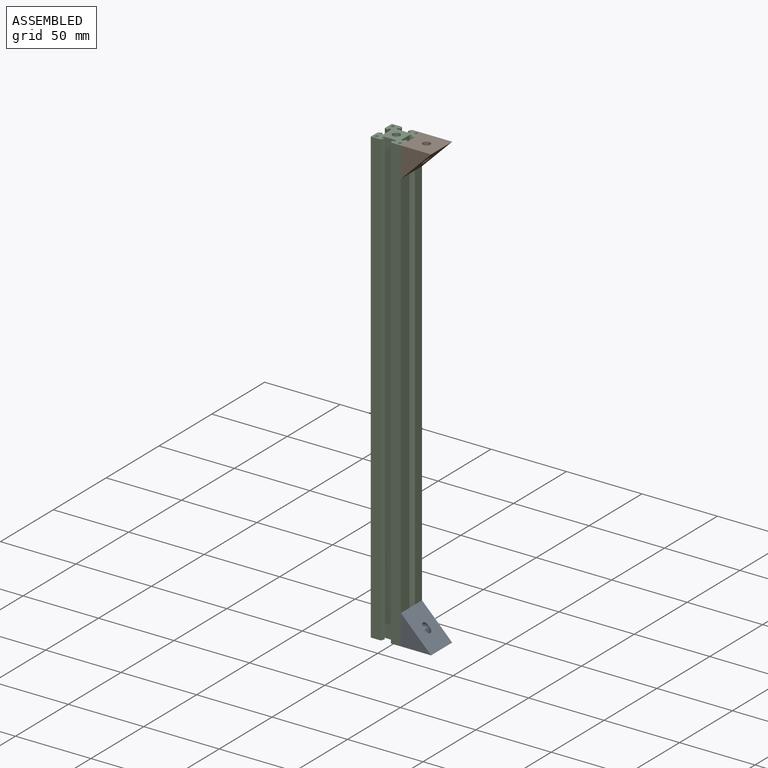
[diagram: assembled view]
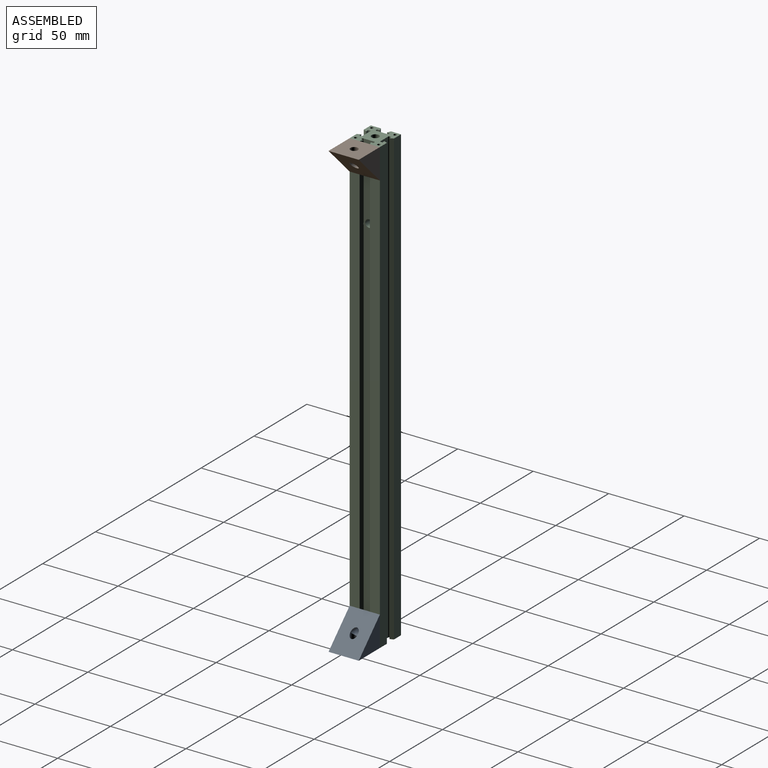
[diagram: assembled view, second angle]
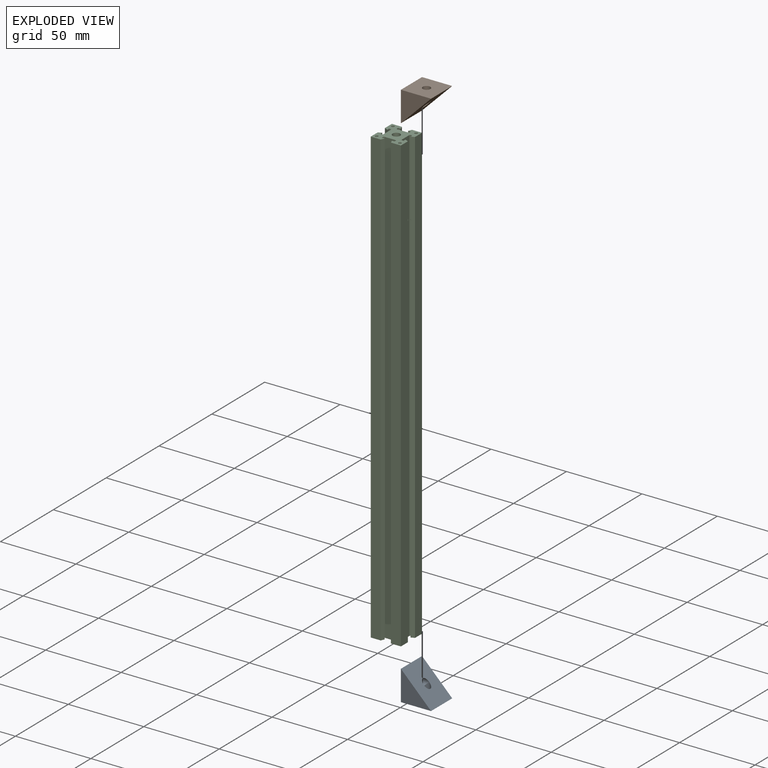
[diagram: exploded view]
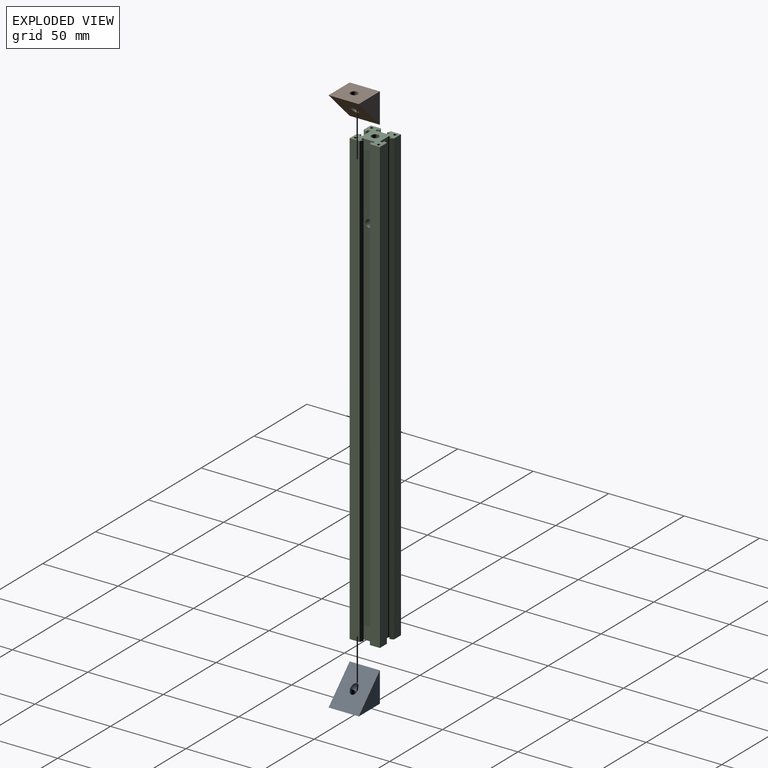
[diagram: exploded view, second angle]
ASSEMBLY  parts=3 mates=2
PART A: 7 faces, bbox 20x20x20 mm
  f0: plane 20x20mm, normal (-1,0,0), area 200mm2, adj f1,f4,f5
  f1: plane 20x20mm, normal (0,-1,0), area 380.4mm2, adj f0,f2,f4,f5,f6
  f2: plane 20x20mm, normal (1,0,0), area 200mm2, adj f1,f4,f5
  f3: cylinder r=2.5mm len=10mm, axis (0,0,-1), area 132.1mm2, adj f4,f5,f6
  f4: plane 20x20mm, normal (0,0,-1), area 380.4mm2, adj f0,f1,f2,f3,f5
  f5: plane 20x20mm, normal (0,0.71,0.71), area 537.9mm2, adj f0,f1,f2,f3,f4,f6
  f6: cylinder r=2.5mm len=10mm, axis (0,-1,0), area 132.1mm2, adj f1,f3,f5
PART B: same geometry as A
PART C: 56 faces, bbox 20x20x300 mm
  f0: cylinder r=2.5mm len=50mm, axis (0,0,-1), area 760.4mm2, adj f50,f52,f53
  f1: plane 300x1.74mm, normal (-1,0,0), area 522.6mm2, adj f2,f48,f50,f51,f54
  f2: plane 300x1.33mm, normal (0,1,0), area 399.7mm2, adj f1,f3,f50,f51
  f3: plane 300x0.44mm, normal (0.81,0.59,0), area 162.1mm2, adj f2,f4,f50,f51
  f4: plane 300x7.42mm, normal (1,0,0), area 2204.9mm2, adj f3,f5,f50,f51,f52
  f5: plane 300x0.44mm, normal (0.81,-0.59,0), area 162.1mm2, adj f4,f6,f50,f51
  f6: plane 300x1.33mm, normal (0,-1,0), area 399.7mm2, adj f5,f7,f50,f51
  f7: plane 300x1.74mm, normal (-1,0,0), area 522.6mm2, adj f6,f8,f50,f51,f55
  f8: plane 300x2.31mm, normal (0.39,-0.92,0), area 750.9mm2, adj f7,f9,f50,f51,f55
  f9: plane 300x6.63mm, normal (1,0,0), area 1989.2mm2, adj f8,f10,f50,f51
  f10: plane 300x6.63mm, normal (0,1,0), area 1989.2mm2, adj f9,f11,f50,f51
  f11: plane 300x2.31mm, normal (-0.92,0.39,0), area 751.1mm2, adj f10,f12,f50,f51
  f12: plane 300x1.81mm, normal (0,-1,0), area 543.3mm2, adj f11,f13,f50,f51
  f13: plane 300x1.43mm, normal (-1,0,0), area 428.1mm2, adj f12,f14,f50,f51
  f14: plane 300x0.44mm, normal (-0.59,0.81,0), area 162.1mm2, adj f13,f15,f50,f51
  f15: plane 300x7.55mm, normal (0,1,0), area 2265.7mm2, adj f14,f16,f50,f51
  f16: plane 300x0.44mm, normal (0.59,0.81,0), area 162.1mm2, adj f15,f17,f50,f51
  f17: plane 300x1.43mm, normal (1,0,0), area 428.1mm2, adj f16,f18,f50,f51
  f18: plane 300x1.81mm, normal (0,-1,0), area 543.3mm2, adj f17,f19,f50,f51
  f19: plane 300x2.31mm, normal (0.92,0.39,0), area 751.1mm2, adj f18,f20,f50,f51
  f20: plane 300x6.63mm, normal (0,1,0), area 1989.2mm2, adj f19,f21,f50,f51
  f21: plane 300x6.63mm, normal (-1,0,0), area 1989.2mm2, adj f20,f22,f50,f51
  f22: plane 300x2.31mm, normal (-0.39,-0.92,0), area 751.1mm2, adj f21,f23,f50,f51
  f23: plane 300x1.74mm, normal (1,0,0), area 522.7mm2, adj f22,f24,f50,f51
  f24: plane 300x1.33mm, normal (0,-1,0), area 399.7mm2, adj f23,f25,f50,f51
  f25: plane 300x0.44mm, normal (-0.81,-0.59,0), area 162.1mm2, adj f24,f26,f50,f51
  f26: plane 300x7.42mm, normal (-1,0,0), area 2204.9mm2, adj f25,f27,f50,f51,f53
  f27: plane 300x0.44mm, normal (-0.81,0.59,0), area 162.1mm2, adj f26,f28,f50,f51
  f28: plane 300x1.33mm, normal (0,1,0), area 399.7mm2, adj f27,f29,f50,f51
  f29: plane 300x1.74mm, normal (1,0,0), area 522.7mm2, adj f28,f30,f50,f51
  f30: plane 300x2.31mm, normal (-0.39,0.92,0), area 751.1mm2, adj f29,f31,f50,f51
  f31: plane 300x6.63mm, normal (-1,0,0), area 1989.2mm2, adj f30,f32,f50,f51
  f32: plane 300x6.63mm, normal (0,-1,0), area 1989.2mm2, adj f31,f33,f50,f51
  f33: plane 300x2.31mm, normal (0.92,-0.39,0), area 751.1mm2, adj f32,f34,f50,f51
  f34: plane 300x1.81mm, normal (0,1,0), area 543.3mm2, adj f33,f35,f50,f51
  f35: plane 300x1.43mm, normal (1,0,0), area 428.1mm2, adj f34,f36,f50,f51
  f36: plane 300x0.44mm, normal (0.59,-0.81,0), area 162.1mm2, adj f35,f37,f50,f51
  f37: plane 300x7.55mm, normal (0,-1,0), area 2265.7mm2, adj f36,f38,f50,f51
  f38: plane 300x0.44mm, normal (-0.59,-0.81,0), area 162.1mm2, adj f37,f39,f50,f51
  f39: plane 300x1.43mm, normal (-1,0,0), area 428.1mm2, adj f38,f40,f50,f51
  f40: plane 300x1.81mm, normal (0,1,0), area 543.3mm2, adj f39,f41,f50,f51
  f41: plane 300x2.31mm, normal (-0.92,-0.39,0), area 751.1mm2, adj f40,f42,f50,f51
  f42: plane 300x6.63mm, normal (0,-1,0), area 1989.2mm2, adj f41,f43,f50,f51
  f43: plane 300x6.63mm, normal (1,0,0), area 1989.2mm2, adj f42,f48,f50,f51
  f44: cylinder r=1mm len=300mm, axis (0,0,-1), area 1885mm2, adj f50,f51
  f45: cylinder r=1mm len=300mm, axis (0,0,-1), area 1885mm2, adj f50,f51
  f46: cylinder r=1mm len=300mm, axis (0,0,-1), area 1885mm2, adj f50,f51
  f47: cylinder r=1mm len=300mm, axis (0,0,-1), area 1885mm2, adj f50,f51
  f48: plane 300x2.31mm, normal (0.39,0.92,0), area 750.9mm2, adj f1,f43,f50,f51,f54
  f49: cylinder r=2.5mm len=250mm, axis (0,0,-1), area 3902mm2, adj f51,f52,f53
  f50: plane 20x20mm, normal (0,0,1), area 258.3mm2, adj f0,f1,f2,f3,f4,f5,f6,f7
  f51: plane 20x20mm, normal (0,0,-1), area 258.3mm2, adj f1,f2,f3,f4,f5,f6,f7,f8
  f52: cylinder r=2.5mm len=6.04mm, axis (-1,0,0), area 69.9mm2, adj f0,f4,f49
  f53: cylinder r=2.5mm len=6.04mm, axis (-1,0,0), area 69.9mm2, adj f0,f26,f49
  f54: cylinder r=2.5mm len=1.38mm, axis (-1,0,0), area 0.2mm2, adj f1,f48
  f55: cylinder r=2.5mm len=1.38mm, axis (-1,0,0), area 0.2mm2, adj f7,f8
PLACE A rot(axis=(0,0,-1),90deg) t=(-114.6,62.48,-24.22)mm
PLACE B rot(axis=(0.71,0.71,0),180deg) t=(-114.6,42.48,275.78)mm
PLACE C t=(-44.35,35.48,-24.22)mm
MATE fastened B.f4 <-> C.f50  axis (0,0,1) through (-44.35,62.48,275.78)mm
MATE fastened A.f4 <-> C.f51  axis (0,0,-1) through (-44.35,42.48,-24.22)mm
